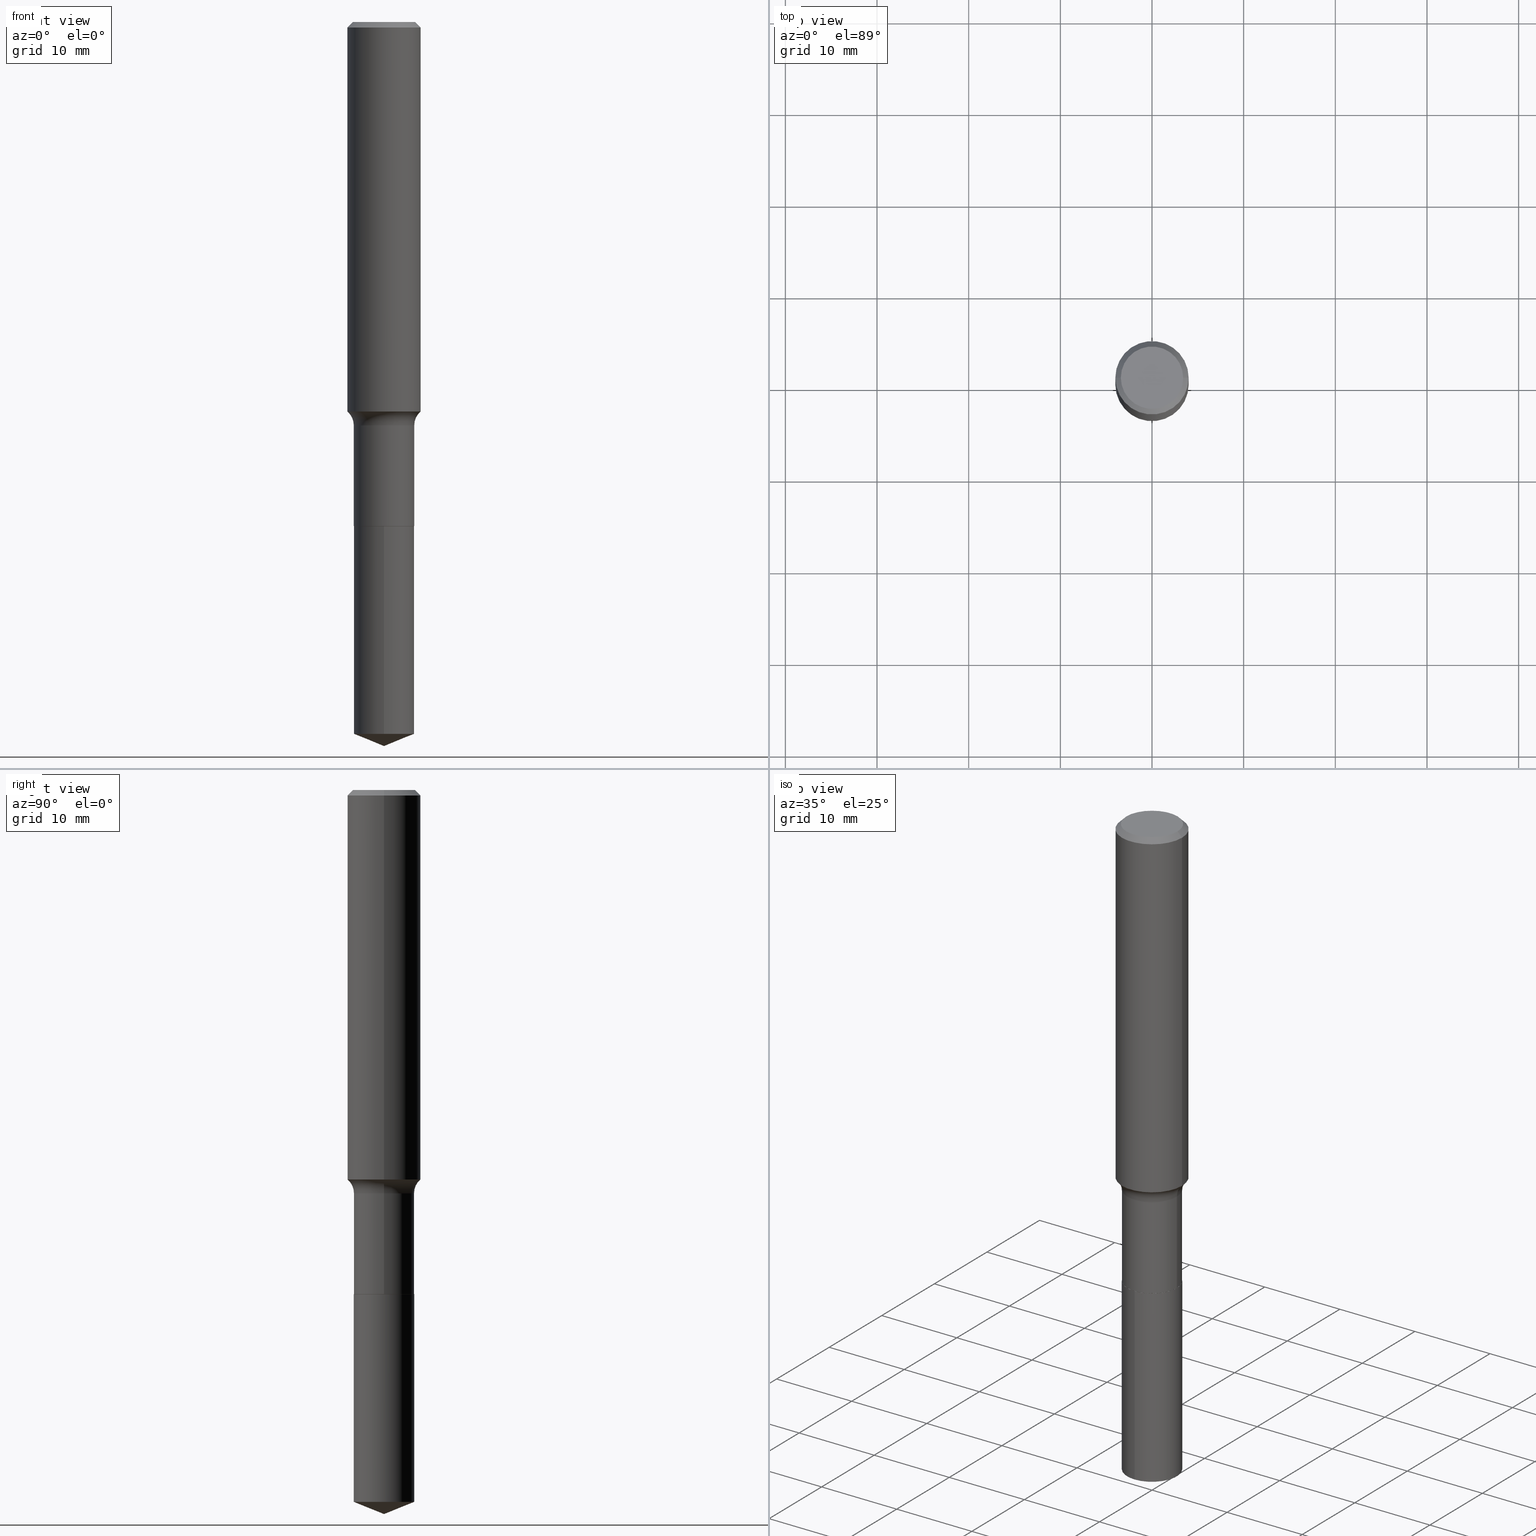
[diagram: canonical four-view strip — front | top / right | iso, engineering-drawing reading convention]
A machine part, canonical four-view strip (front | top / right | iso — engineering-drawing reading convention). The complete STEP part file that produces these views, byte-faithful:
ISO-10303-21;
HEADER;
FILE_DESCRIPTION (( 'STEP AP203' ),
    '1' );
FILE_NAME ('69156.STEP',
    '2024-04-19T17:17:49',
    ( '' ),
    ( '' ),
    'SwSTEP 2.0',
    'SolidWorks 2023',
    '' );
FILE_SCHEMA (( 'CONFIG_CONTROL_DESIGN' ));
ENDSEC;

DATA;
#1 = CALENDAR_DATE ( 2024, 19, 4 ) ;
#2 = LINE ( 'NONE', #305, #219 ) ;
#3 = ORIENTED_EDGE ( 'NONE', *, *, #112, .F. ) ;
#4 = COORDINATED_UNIVERSAL_TIME_OFFSET ( 5, 0, .BEHIND. ) ;
#5 = CARTESIAN_POINT ( 'NONE',  ( 9.229950137524449958E-16, 0.1298999999999893573, -3.057716993264014249 ) ) ;
#6 = APPROVAL_DATE_TIME ( #421, #202 ) ;
#7 = DIRECTION ( 'NONE',  ( -2.445364985460457851E-29, 3.491630016029994283E-15, 1.000000000000000000 ) ) ;
#8 = EDGE_LOOP ( 'NONE', ( #238, #171, #401 ) ) ;
#9 = AXIS2_PLACEMENT_3D ( 'NONE', #98, #477, #134 ) ;
#10 = CARTESIAN_POINT ( 'NONE',  ( -0.1575000000000000011, -1.842884376224946844E-15, -0.02362500000000015282 ) ) ;
#11 = EDGE_LOOP ( 'NONE', ( #81, #18, #418, #464 ) ) ;
#12 = EDGE_CURVE ( 'NONE', #205, #119, #395, .T. ) ;
#13 = PRODUCT_DEFINITION ( 'UNKNOWN', '', #368, #439 ) ;
#14 = DIRECTION ( 'NONE',  ( -2.445468806185136597E-29, 3.491481338843145583E-15, 1.000000000000000000 ) ) ;
#15 = LINE ( 'NONE', #162, #24 ) ;
#16 = EDGE_LOOP ( 'NONE', ( #375, #33, #278, #380 ) ) ;
#17 = CYLINDRICAL_SURFACE ( 'NONE', #366, 0.1575000000000000844 ) ;
#18 = ORIENTED_EDGE ( 'NONE', *, *, #281, .F. ) ;
#19 = LINE ( 'NONE', #369, #311 ) ;
#20 = TOROIDAL_SURFACE ( 'NONE', #476, 0.2078999999999999182, 0.07800000000000001377 ) ;
#21 = DIRECTION ( 'NONE',  ( -2.445468806185136597E-29, 3.491481338843145583E-15, 1.000000000000000000 ) ) ;
#22 = DIRECTION ( 'NONE',  ( -2.445468806185136597E-29, 3.491481338843145583E-15, 1.000000000000000000 ) ) ;
#23 = DIRECTION ( 'NONE',  ( 7.105427357601001859E-15, 1.000000000000000000, -3.491481338843145583E-15 ) ) ;
#24 = VECTOR ( 'NONE', #468, 39.37007874015748143 ) ;
#25 = DIRECTION ( 'NONE',  ( 1.000000000000000000, 0.000000000000000000, 0.000000000000000000 ) ) ;
#26 = ORIENTED_EDGE ( 'NONE', *, *, #132, .T. ) ;
#27 = DIRECTION ( 'NONE',  ( -2.445364985460457851E-29, 3.491630016029994283E-15, 1.000000000000000000 ) ) ;
#28 = DIRECTION ( 'NONE',  ( -2.445468806185136597E-29, 3.491481338843145583E-15, 1.000000000000000000 ) ) ;
#29 = ADVANCED_BREP_SHAPE_REPRESENTATION ( '69156', ( #325, #483, #122 ), #352 ) ;
#30 = EDGE_CURVE ( 'NONE', #394, #101, #288, .T. ) ;
#31 = CIRCLE ( 'NONE', #224, 0.07800000000000002764 ) ;
#32 = EDGE_CURVE ( 'NONE', #394, #173, #86, .T. ) ;
#33 = ORIENTED_EDGE ( 'NONE', *, *, #32, .T. ) ;
#34 = DIRECTION ( 'NONE',  ( -2.445364985460457851E-29, 3.491630016029994283E-15, 1.000000000000000000 ) ) ;
#35 = VERTEX_POINT ( 'NONE', #324 ) ;
#36 = CARTESIAN_POINT ( 'NONE',  ( 5.295173606032675561E-29, -7.560104542997063911E-15, -2.165299999999999780 ) ) ;
#37 = CARTESIAN_POINT ( 'NONE',  ( 5.295173606032675561E-29, -7.560104542997063911E-15, -2.165299999999999780 ) ) ;
#38 = CARTESIAN_POINT ( 'NONE',  ( 5.777420054612421980E-31, -8.248624663016985234E-17, -0.02362500000000015282 ) ) ;
#39 = VECTOR ( 'NONE', #58, 39.37007874015748143 ) ;
#40 = AXIS2_PLACEMENT_3D ( 'NONE', #465, #115, #261 ) ;
#41 = DATE_TIME_ROLE ( 'creation_date' ) ;
#42 = CARTESIAN_POINT ( 'NONE',  ( 4.091440103254479694E-29, -5.841492123464042654E-15, -1.673069839576900142 ) ) ;
#43 = APPROVAL_STATUS ( 'not_yet_approved' ) ;
#44 = CARTESIAN_POINT ( 'NONE',  ( 5.295173606032675561E-29, -7.560104542997063911E-15, -2.165299999999999780 ) ) ;
#45 = FACE_OUTER_BOUND ( 'NONE', #156, .T. ) ;
#46 = ADVANCED_FACE ( 'NONE', ( #209 ), #250, .T. ) ;
#47 = EDGE_CURVE ( 'NONE', #282, #104, #165, .T. ) ;
#48 = AXIS2_PLACEMENT_3D ( 'NONE', #42, #460, #463 ) ;
#49 = PRODUCT_DEFINITION_SHAPE ( 'NONE', 'NONE',  #13 ) ;
#50 = AXIS2_PLACEMENT_3D ( 'NONE', #355, #234, #277 ) ;
#51 = CIRCLE ( 'NONE', #462, 0.1298999999999999877 ) ;
#52 = DIRECTION ( 'NONE',  ( 1.000000000000000000, -6.982962677686265922E-15, 0.000000000000000000 ) ) ;
#53 = PLANE ( 'NONE',  #350 ) ;
#54 = FACE_OUTER_BOUND ( 'NONE', #89, .T. ) ;
#55 = CLOSED_SHELL ( 'NONE', ( #46, #383, #313, #407, #341, #370, #80, #61, #291, #359, #334, #174 ) ) ;
#56 = CYLINDRICAL_SURFACE ( 'NONE', #481, 0.1298999999999999599 ) ;
#57 = VECTOR ( 'NONE', #295, 39.37007874015748143 ) ;
#58 = DIRECTION ( 'NONE',  ( -2.445468806185136877E-29, 3.491481338843145188E-15, 1.000000000000000000 ) ) ;
#59 = DIRECTION ( 'NONE',  ( -2.445364985460457851E-29, 3.491630016029994283E-15, 1.000000000000000000 ) ) ;
#60 = FACE_OUTER_BOUND ( 'NONE', #8, .T. ) ;
#61 = ADVANCED_FACE ( 'NONE', ( #215 ), #17, .T. ) ;
#62 = EDGE_CURVE ( 'NONE', #205, #349, #139, .T. ) ;
#63 = APPLICATION_PROTOCOL_DEFINITION ( 'international standard', 'config_control_design', 1994, #194 ) ;
#64 = VECTOR ( 'NONE', #164, 39.37007874015748143 ) ;
#65 = CARTESIAN_POINT ( 'NONE',  ( 5.293950871629583880E-29, -7.558358802327641618E-15, -2.164800000000000058 ) ) ;
#66 = DIRECTION ( 'NONE',  ( 6.982962677686265922E-15, 1.000000000000000000, -3.491630016029994283E-15 ) ) ;
#67 =( NAMED_UNIT ( * ) PLANE_ANGLE_UNIT ( ) SI_UNIT ( $, .RADIAN. ) );
#68 = ADVANCED_FACE ( 'NONE', ( #199 ), #153, .T. ) ;
#69 = DATE_TIME_ROLE ( 'classification_date' ) ;
#70 = LOCAL_TIME ( 13, 17, 49.00000000000000000, #4 ) ;
#71 = COORDINATED_UNIVERSAL_TIME_OFFSET ( 5, 0, .BEHIND. ) ;
#72 = CARTESIAN_POINT ( 'NONE',  ( -0.1293999999999999873, -6.640662242923493769E-15, -2.165299999999999780 ) ) ;
#73 = DIRECTION ( 'NONE',  ( -2.445364985460457851E-29, 3.491630016029994283E-15, 1.000000000000000000 ) ) ;
#74 = APPROVAL_ROLE ( '' ) ;
#75 = VECTOR ( 'NONE', #172, 39.37007874015748854 ) ;
#76 = PERSON_AND_ORGANIZATION ( #416, #167 ) ;
#77 = DIRECTION ( 'NONE',  ( -2.445468806185136597E-29, 3.491481338843145583E-15, 1.000000000000000000 ) ) ;
#78 = ORIENTED_EDGE ( 'NONE', *, *, #190, .T. ) ;
#79 = DIRECTION ( 'NONE',  ( -2.445468806185136597E-29, 3.491481338843145583E-15, 1.000000000000000000 ) ) ;
#80 = ADVANCED_FACE ( 'NONE', ( #201 ), #480, .F. ) ;
#81 = ORIENTED_EDGE ( 'NONE', *, *, #392, .F. ) ;
#82 = EDGE_CURVE ( 'NONE', #389, #258, #223, .T. ) ;
#83 = CARTESIAN_POINT ( 'NONE',  ( 4.237019253596368185E-29, -6.049340567679635558E-15, -1.732600000000000362 ) ) ;
#84 = UNCERTAINTY_MEASURE_WITH_UNIT (LENGTH_MEASURE( 1.000000000000000082E-05 ), #257, 'distance_accuracy_value', 'NONE');
#85 = PRODUCT_RELATED_PRODUCT_CATEGORY ( 'detail', '', ( #116 ) ) ;
#86 = CIRCLE ( 'NONE', #99, 0.1298999999999999877 ) ;
#87 = AXIS2_PLACEMENT_3D ( 'NONE', #345, #143, #301 ) ;
#88 = CARTESIAN_POINT ( 'NONE',  ( -0.1338749999999999940, 9.760872517903331886E-16, 4.101342130337800673E-18 ) ) ;
#89 = EDGE_LOOP ( 'NONE', ( #136, #385 ) ) ;
#90 = CARTESIAN_POINT ( 'NONE',  ( 5.295173606032675561E-29, -7.560104542997063911E-15, -2.165299999999999780 ) ) ;
#91 = DIRECTION ( 'NONE',  ( -2.445468806185136597E-29, 3.491481338843145583E-15, 1.000000000000000000 ) ) ;
#92 = AXIS2_PLACEMENT_3D ( 'NONE', #106, #229, #309 ) ;
#93 = FACE_OUTER_BOUND ( 'NONE', #316, .T. ) ;
#94 = ORIENTED_EDGE ( 'NONE', *, *, #147, .F. ) ;
#95 = ADVANCED_FACE ( 'NONE', ( #274 ), #490, .T. ) ;
#96 = CC_DESIGN_PERSON_AND_ORGANIZATION_ASSIGNMENT ( #447, #105, ( #116 ) ) ;
#97 = VERTEX_POINT ( 'NONE', #231 ) ;
#98 = CARTESIAN_POINT ( 'NONE',  ( 5.295173606032675561E-29, -7.560104542997063911E-15, -2.165299999999999780 ) ) ;
#99 = AXIS2_PLACEMENT_3D ( 'NONE', #65, #21, #170 ) ;
#100 = DIRECTION ( 'NONE',  ( 1.000000000000000000, -6.982962677686265133E-15, 0.000000000000000000 ) ) ;
#101 = VERTEX_POINT ( 'NONE', #348 ) ;
#102 =( LENGTH_UNIT ( ) NAMED_UNIT ( * ) SI_UNIT ( $, .METRE. ) );
#103 = APPROVAL ( #43, 'UNSPECIFIED' ) ;
#104 = VERTEX_POINT ( 'NONE', #113 ) ;
#105 = PERSON_AND_ORGANIZATION_ROLE ( 'design_owner' ) ;
#106 = CARTESIAN_POINT ( 'NONE',  ( 4.237019253596368185E-29, -6.049340567679635558E-15, -1.732600000000000362 ) ) ;
#107 = DIRECTION ( 'NONE',  ( -6.982962677686266711E-15, -1.000000000000000000, 4.206078512185163024E-15 ) ) ;
#108 = CALENDAR_DATE ( 2024, 19, 4 ) ;
#109 = DIRECTION ( 'NONE',  ( -0.7071067811865450192, 2.468850131082230634E-15, -0.7071067811865500152 ) ) ;
#110 = SECURITY_CLASSIFICATION_LEVEL ( 'unclassified' ) ;
#111 = DIRECTION ( 'NONE',  ( -6.982962677686266711E-15, -1.000000000000000000, 4.206078512185163024E-15 ) ) ;
#112 = EDGE_CURVE ( 'NONE', #258, #377, #422, .T. ) ;
#113 = CARTESIAN_POINT ( 'NONE',  ( 0.1293999999999999873, -8.463699913489665713E-15, -2.165299999999999780 ) ) ;
#114 = ORIENTED_EDGE ( 'NONE', *, *, #129, .T. ) ;
#115 = DIRECTION ( 'NONE',  ( 2.445468806185136597E-29, -3.491481338843145583E-15, -1.000000000000000000 ) ) ;
#116 = PRODUCT ( '69156', '69156', '', ( #182 ) ) ;
#117 = DIRECTION ( 'NONE',  ( -2.445364985460457851E-29, 3.491630016029994283E-15, 1.000000000000000000 ) ) ;
#118 = CYLINDRICAL_SURFACE ( 'NONE', #284, 0.1575000000000000844 ) ;
#119 = VERTEX_POINT ( 'NONE', #150 ) ;
#120 = ORIENTED_EDGE ( 'NONE', *, *, #225, .F. ) ;
#121 = AXIS2_PLACEMENT_3D ( 'NONE', #38, #79, #272 ) ;
#122 = AXIS2_PLACEMENT_3D ( 'NONE', #373, #475, #25 ) ;
#123 = CARTESIAN_POINT ( 'NONE',  ( 0.000000000000000000, 0.000000000000000000, 0.000000000000000000 ) ) ;
#124 = CC_DESIGN_DATE_AND_TIME_ASSIGNMENT ( #308, #69, ( #253 ) ) ;
#125 = DIRECTION ( 'NONE',  ( 1.000000000000000000, -6.982962677686266711E-15, 4.876170806578254279E-29 ) ) ;
#126 = ORIENTED_EDGE ( 'NONE', *, *, #486, .F. ) ;
#127 = CARTESIAN_POINT ( 'NONE',  ( 0.000000000000000000, 0.000000000000000000, 0.000000000000000000 ) ) ;
#128 = ORIENTED_EDGE ( 'NONE', *, *, #392, .T. ) ;
#129 = EDGE_CURVE ( 'NONE', #377, #302, #206, .T. ) ;
#130 = CARTESIAN_POINT ( 'NONE',  ( 0.1338749999999999940, -1.040731925365424925E-15, 4.101342130351390035E-18 ) ) ;
#131 = CIRCLE ( 'NONE', #492, 0.1575000000000001954 ) ;
#132 = EDGE_CURVE ( 'NONE', #282, #394, #488, .T. ) ;
#133 = CC_DESIGN_APPROVAL ( #202, ( #368 ) ) ;
#134 = DIRECTION ( 'NONE',  ( -6.982962677686266711E-15, -1.000000000000000000, 4.206078512185163024E-15 ) ) ;
#135 = CARTESIAN_POINT ( 'NONE',  ( 5.295173606032675561E-29, -7.560104542997063911E-15, -2.165299999999999780 ) ) ;
#136 = ORIENTED_EDGE ( 'NONE', *, *, #296, .T. ) ;
#137 = ORIENTED_EDGE ( 'NONE', *, *, #281, .T. ) ;
#138 = CARTESIAN_POINT ( 'NONE',  ( -8.866841304520801907E-28, 1.266064029174544030E-13, 36.25987874015748247 ) ) ;
#139 = CIRCLE ( 'NONE', #232, 0.1298999999999999877 ) ;
#140 = CIRCLE ( 'NONE', #331, 0.1298999999999999322 ) ;
#141 = FACE_OUTER_BOUND ( 'NONE', #263, .T. ) ;
#142 = APPROVAL_ROLE ( '' ) ;
#143 = DIRECTION ( 'NONE',  ( -2.445468806185136597E-29, 3.491481338843145583E-15, 1.000000000000000000 ) ) ;
#144 = COORDINATED_UNIVERSAL_TIME_OFFSET ( 5, 0, .BEHIND. ) ;
#145 = EDGE_CURVE ( 'NONE', #101, #226, #148, .T. ) ;
#146 = DIRECTION ( 'NONE',  ( -2.445364985460457851E-29, 3.491630016029994283E-15, 1.000000000000000000 ) ) ;
#147 = EDGE_CURVE ( 'NONE', #349, #205, #269, .T. ) ;
#148 = CIRCLE ( 'NONE', #50, 0.1298999999999999322 ) ;
#149 = SHAPE_DEFINITION_REPRESENTATION ( #49, #29 ) ;
#150 = CARTESIAN_POINT ( 'NONE',  ( 9.229950137524447986E-16, 0.1298999999999924382, -2.165300000000000669 ) ) ;
#151 = ORIENTED_EDGE ( 'NONE', *, *, #486, .T. ) ;
#152 = CALENDAR_DATE ( 2024, 19, 4 ) ;
#153 = CYLINDRICAL_SURFACE ( 'NONE', #310, 0.1298999999999999877 ) ;
#154 = PERSON_AND_ORGANIZATION_ROLE ( 'creator' ) ;
#155 = DIRECTION ( 'NONE',  ( -6.982962677686266711E-15, -1.000000000000000000, 4.206078512185163024E-15 ) ) ;
#156 = EDGE_LOOP ( 'NONE', ( #137, #163, #293, #3 ) ) ;
#157 = DIRECTION ( 'NONE',  ( -2.445468806185136597E-29, 3.491481338843145583E-15, 1.000000000000000000 ) ) ;
#158 = CIRCLE ( 'NONE', #9, 0.1298999999999999877 ) ;
#159 = DIRECTION ( 'NONE',  ( -2.445468806185136597E-29, 3.491481338843145583E-15, 1.000000000000000000 ) ) ;
#160 = ORIENTED_EDGE ( 'NONE', *, *, #32, .F. ) ;
#161 = ORIENTED_EDGE ( 'NONE', *, *, #62, .T. ) ;
#162 = CARTESIAN_POINT ( 'NONE',  ( 7.606027726323578018E-29, -1.085902381443112281E-14, -3.110199999999999854 ) ) ;
#163 = ORIENTED_EDGE ( 'NONE', *, *, #332, .T. ) ;
#164 = DIRECTION ( 'NONE',  ( -2.445468806185136877E-29, 3.491481338843145188E-15, 1.000000000000000000 ) ) ;
#165 = CIRCLE ( 'NONE', #454, 0.1293999999999999873 ) ;
#166 = AXIS2_PLACEMENT_3D ( 'NONE', #292, #23, #177 ) ;
#167 = ORGANIZATION ( 'UNSPECIFIED', 'UNSPECIFIED', '' ) ;
#168 = CARTESIAN_POINT ( 'NONE',  ( 5.295173606032675561E-29, -7.560104542997063911E-15, -2.165299999999999780 ) ) ;
#169 = EDGE_LOOP ( 'NONE', ( #241, #161, #482, #195 ) ) ;
#170 = DIRECTION ( 'NONE',  ( 1.000000000000000000, -6.982962677686268288E-15, 0.000000000000000000 ) ) ;
#171 = ORIENTED_EDGE ( 'NONE', *, *, #314, .T. ) ;
#172 = DIRECTION ( 'NONE',  ( -6.474490251793187306E-15, -0.9271838545667875353, 0.3746065934159114597 ) ) ;
#173 = VERTEX_POINT ( 'NONE', #228 ) ;
#174 = ADVANCED_FACE ( 'NONE', ( #432 ), #372, .T. ) ;
#175 = EDGE_CURVE ( 'NONE', #119, #97, #51, .T. ) ;
#176 = APPLICATION_CONTEXT ( 'configuration controlled 3d designs of mechanical parts and assemblies' ) ;
#177 = DIRECTION ( 'NONE',  ( -1.000000000000000000, 7.105427357601001859E-15, 0.000000000000000000 ) ) ;
#178 = ORIENTED_EDGE ( 'NONE', *, *, #473, .F. ) ;
#179 = DIMENSIONAL_EXPONENTS ( 1.000000000000000000, 0.000000000000000000, 0.000000000000000000, 0.000000000000000000, 0.000000000000000000, 0.000000000000000000, 0.000000000000000000 ) ;
#180 = AXIS2_PLACEMENT_3D ( 'NONE', #138, #27, #329 ) ;
#181 = CARTESIAN_POINT ( 'NONE',  ( -9.070868518313931384E-16, -0.1299000000000075650, -2.165299999999999336 ) ) ;
#182 = MECHANICAL_CONTEXT ( 'NONE', #194, 'mechanical' ) ;
#183 = ORIENTED_EDGE ( 'NONE', *, *, #175, .T. ) ;
#184 = LINE ( 'NONE', #218, #275 ) ;
#185 = ORIENTED_EDGE ( 'NONE', *, *, #112, .T. ) ;
#186 = CLOSED_SHELL ( 'NONE', ( #95, #191, #408, #68, #445 ) ) ;
#187 = AXIS2_PLACEMENT_3D ( 'NONE', #357, #7, #189 ) ;
#188 = ORIENTED_EDGE ( 'NONE', *, *, #264, .F. ) ;
#189 = DIRECTION ( 'NONE',  ( -6.982962677686266711E-15, -1.000000000000000000, 4.206078512185163024E-15 ) ) ;
#190 = EDGE_CURVE ( 'NONE', #302, #377, #240, .T. ) ;
#191 = ADVANCED_FACE ( 'NONE', ( #196 ), #367, .T. ) ;
#192 = DATE_AND_TIME ( #230, #322 ) ;
#193 = CARTESIAN_POINT ( 'NONE',  ( 5.295173606032675561E-29, -7.560104542997063911E-15, -2.165299999999999780 ) ) ;
#194 = APPLICATION_CONTEXT ( 'configuration controlled 3d designs of mechanical parts and assemblies' ) ;
#195 = ORIENTED_EDGE ( 'NONE', *, *, #175, .F. ) ;
#196 = FACE_OUTER_BOUND ( 'NONE', #442, .T. ) ;
#197 = LOCAL_TIME ( 13, 17, 49.00000000000000000, #71 ) ;
#198 = PERSON_AND_ORGANIZATION ( #416, #167 ) ;
#199 = FACE_OUTER_BOUND ( 'NONE', #169, .T. ) ;
#200 = APPROVAL_STATUS ( 'not_yet_approved' ) ;
#201 = FACE_OUTER_BOUND ( 'NONE', #11, .T. ) ;
#202 = APPROVAL ( #200, 'UNSPECIFIED' ) ;
#203 = CARTESIAN_POINT ( 'NONE',  ( 0.000000000000000000, 0.000000000000000000, 0.000000000000000000 ) ) ;
#204 = DIRECTION ( 'NONE',  ( 1.000000000000000000, -6.982962677686265922E-15, 4.876176775795935793E-29 ) ) ;
#205 = VERTEX_POINT ( 'NONE', #5 ) ;
#206 = CIRCLE ( 'NONE', #267, 0.1575000000000000011 ) ;
#207 = AXIS2_PLACEMENT_3D ( 'NONE', #365, #249, #393 ) ;
#208 = CARTESIAN_POINT ( 'NONE',  ( 5.777420054612421980E-31, -8.248624663016985234E-17, -0.02362500000000015282 ) ) ;
#209 = FACE_OUTER_BOUND ( 'NONE', #364, .T. ) ;
#210 = CYLINDRICAL_SURFACE ( 'NONE', #212, 0.1298999999999999599 ) ;
#211 = LINE ( 'NONE', #440, #75 ) ;
#212 = AXIS2_PLACEMENT_3D ( 'NONE', #123, #91, #285 ) ;
#213 = CC_DESIGN_SECURITY_CLASSIFICATION ( #253, ( #368 ) ) ;
#214 = CARTESIAN_POINT ( 'NONE',  ( 0.1575000000000002232, -6.941308745199630134E-15, -1.673069839576900142 ) ) ;
#215 = FACE_OUTER_BOUND ( 'NONE', #415, .T. ) ;
#216 = EDGE_CURVE ( 'NONE', #434, #327, #252, .T. ) ;
#217 = CARTESIAN_POINT ( 'NONE',  ( 5.295173606032675561E-29, -7.560104542997063911E-15, -2.165299999999999780 ) ) ;
#218 = CARTESIAN_POINT ( 'NONE',  ( 0.1298999999999999599, -9.070868518314457948E-16, 6.334153631758918028E-30 ) ) ;
#219 = VECTOR ( 'NONE', #109, 39.37007874015748143 ) ;
#220 = FACE_OUTER_BOUND ( 'NONE', #262, .T. ) ;
#221 = PLANE ( 'NONE',  #233 ) ;
#222 = CC_DESIGN_PERSON_AND_ORGANIZATION_ASSIGNMENT ( #489, #347, ( #13 ) ) ;
#223 = CIRCLE ( 'NONE', #48, 0.1575000000000001954 ) ;
#224 = AXIS2_PLACEMENT_3D ( 'NONE', #388, #397, #469 ) ;
#225 = EDGE_CURVE ( 'NONE', #327, #302, #2, .T. ) ;
#226 = VERTEX_POINT ( 'NONE', #427 ) ;
#227 = APPROVAL_ROLE ( '' ) ;
#228 = CARTESIAN_POINT ( 'NONE',  ( 0.1298999999999999877, -8.465445654159088005E-15, -2.164800000000000058 ) ) ;
#229 = DIRECTION ( 'NONE',  ( -2.445468806185136597E-29, 3.491481338843145583E-15, 1.000000000000000000 ) ) ;
#230 = CALENDAR_DATE ( 2024, 19, 4 ) ;
#231 = CARTESIAN_POINT ( 'NONE',  ( -9.070868518313931384E-16, -0.1299000000000075650, -2.165299999999999336 ) ) ;
#232 = AXIS2_PLACEMENT_3D ( 'NONE', #453, #73, #155 ) ;
#233 = AXIS2_PLACEMENT_3D ( 'NONE', #217, #371, #66 ) ;
#234 = DIRECTION ( 'NONE',  ( -2.445468806185136597E-29, 3.491481338843145583E-15, 1.000000000000000000 ) ) ;
#235 = ORIENTED_EDGE ( 'NONE', *, *, #30, .T. ) ;
#236 = CARTESIAN_POINT ( 'NONE',  ( -8.866841304520801907E-28, 1.266064029174544030E-13, 36.25987874015748247 ) ) ;
#237 = ORIENTED_EDGE ( 'NONE', *, *, #132, .F. ) ;
#238 = ORIENTED_EDGE ( 'NONE', *, *, #265, .F. ) ;
#239 = DIRECTION ( 'NONE',  ( -2.445468806185136597E-29, 3.491481338843145583E-15, 1.000000000000000000 ) ) ;
#240 = CIRCLE ( 'NONE', #121, 0.1575000000000000011 ) ;
#241 = ORIENTED_EDGE ( 'NONE', *, *, #12, .F. ) ;
#242 = CARTESIAN_POINT ( 'NONE',  ( 4.091440103254479694E-29, -5.841492123464042654E-15, -1.673069839576900142 ) ) ;
#243 = ORIENTED_EDGE ( 'NONE', *, *, #216, .F. ) ;
#244 = DIRECTION ( 'NONE',  ( 1.000000000000000000, -6.982962677686265133E-15, 0.000000000000000000 ) ) ;
#245 = ORIENTED_EDGE ( 'NONE', *, *, #47, .T. ) ;
#246 = DIRECTION ( 'NONE',  ( 1.000000000000000000, -6.982962677686267499E-15, 4.876176775795936353E-29 ) ) ;
#247 = ORIENTED_EDGE ( 'NONE', *, *, #296, .F. ) ;
#248 = EDGE_CURVE ( 'NONE', #258, #226, #31, .T. ) ;
#249 = DIRECTION ( 'NONE',  ( 2.438088387897960049E-29, -3.491481338843145188E-15, -1.000000000000000000 ) ) ;
#250 = CONICAL_SURFACE ( 'NONE', #361, 0.1293999999999999873, 0.7853981633975507526 ) ;
#251 = ORIENTED_EDGE ( 'NONE', *, *, #443, .T. ) ;
#252 = CIRCLE ( 'NONE', #87, 0.1338749999999999940 ) ;
#253 = SECURITY_CLASSIFICATION ( '', '', #110 ) ;
#254 = DIRECTION ( 'NONE',  ( 1.000000000000000000, -6.982962677686268288E-15, 0.000000000000000000 ) ) ;
#255 = CC_DESIGN_PERSON_AND_ORGANIZATION_ASSIGNMENT ( #306, #154, ( #368 ) ) ;
#256 = ORIENTED_EDGE ( 'NONE', *, *, #358, .T. ) ;
#257 =( CONVERSION_BASED_UNIT ( 'INCH', #333 ) LENGTH_UNIT ( ) NAMED_UNIT ( #179 ) );
#258 = VERTEX_POINT ( 'NONE', #214 ) ;
#259 = VECTOR ( 'NONE', #117, 39.37007874015748143 ) ;
#260 = AXIS2_PLACEMENT_3D ( 'NONE', #208, #441, #471 ) ;
#261 = DIRECTION ( 'NONE',  ( -1.000000000000000000, 6.982962677686265922E-15, 0.000000000000000000 ) ) ;
#262 = EDGE_LOOP ( 'NONE', ( #251, #183 ) ) ;
#263 = EDGE_LOOP ( 'NONE', ( #409, #128, #431, #402 ) ) ;
#264 = EDGE_CURVE ( 'NONE', #226, #101, #140, .T. ) ;
#265 = EDGE_CURVE ( 'NONE', #35, #205, #15, .T. ) ;
#266 = APPROVAL_STATUS ( 'not_yet_approved' ) ;
#267 = AXIS2_PLACEMENT_3D ( 'NONE', #430, #77, #457 ) ;
#268 = DIRECTION ( 'NONE',  ( -2.445468806185136877E-29, 3.491481338843145188E-15, 1.000000000000000000 ) ) ;
#269 = CIRCLE ( 'NONE', #187, 0.1298999999999999877 ) ;
#270 = DIRECTION ( 'NONE',  ( -2.445364985460457851E-29, 3.491630016029994283E-15, 1.000000000000000000 ) ) ;
#271 = APPROVAL_DATE_TIME ( #417, #103 ) ;
#272 = DIRECTION ( 'NONE',  ( 1.000000000000000000, -6.982962677686265922E-15, 0.000000000000000000 ) ) ;
#273 = PERSON_AND_ORGANIZATION ( #416, #167 ) ;
#274 = FACE_OUTER_BOUND ( 'NONE', #472, .T. ) ;
#275 = VECTOR ( 'NONE', #340, 39.37007874015748143 ) ;
#276 = ORIENTED_EDGE ( 'NONE', *, *, #190, .F. ) ;
#277 = DIRECTION ( 'NONE',  ( 1.000000000000000000, -6.982962677686263555E-15, 0.000000000000000000 ) ) ;
#278 = ORIENTED_EDGE ( 'NONE', *, *, #485, .T. ) ;
#279 = CARTESIAN_POINT ( 'NONE',  ( 0.1575000000000000011, -1.182302868365756679E-15, -0.02362500000000015282 ) ) ;
#280 = EDGE_CURVE ( 'NONE', #434, #377, #19, .T. ) ;
#281 = EDGE_CURVE ( 'NONE', #258, #389, #131, .T. ) ;
#282 = VERTEX_POINT ( 'NONE', #286 ) ;
#283 = CARTESIAN_POINT ( 'NONE',  ( 0.000000000000000000, 0.000000000000000000, 0.000000000000000000 ) ) ;
#284 = AXIS2_PLACEMENT_3D ( 'NONE', #283, #437, #315 ) ;
#285 = DIRECTION ( 'NONE',  ( 1.000000000000000000, -6.982962677686266711E-15, 4.876176775795935232E-29 ) ) ;
#286 = CARTESIAN_POINT ( 'NONE',  ( -0.1293999999999999873, -6.638013015749382568E-15, -2.165299999999999780 ) ) ;
#287 = DIRECTION ( 'NONE',  ( -2.445468806185136597E-29, 3.491481338843145583E-15, 1.000000000000000000 ) ) ;
#288 = LINE ( 'NONE', #336, #39 ) ;
#289 = VECTOR ( 'NONE', #268, 39.37007874015748143 ) ;
#290 = CIRCLE ( 'NONE', #294, 0.1298999999999999877 ) ;
#291 = ADVANCED_FACE ( 'NONE', ( #318 ), #398, .T. ) ;
#292 = CARTESIAN_POINT ( 'NONE',  ( -0.2078999999999999182, -4.572122220034387458E-15, -1.732600000000000362 ) ) ;
#293 = ORIENTED_EDGE ( 'NONE', *, *, #129, .F. ) ;
#294 = AXIS2_PLACEMENT_3D ( 'NONE', #337, #484, #254 ) ;
#295 = DIRECTION ( 'NONE',  ( 0.7071067811866199593, -2.468850131083015945E-15, 0.7071067811864750752 ) ) ;
#296 = EDGE_CURVE ( 'NONE', #327, #434, #429, .T. ) ;
#297 = EDGE_LOOP ( 'NONE', ( #346, #235, #188, #461 ) ) ;
#298 = DIRECTION ( 'NONE',  ( 1.000000000000000000, -6.982962677686267499E-15, 4.883557194083113462E-29 ) ) ;
#299 = ORIENTED_EDGE ( 'NONE', *, *, #314, .F. ) ;
#300 = PERSON_AND_ORGANIZATION_ROLE ( 'classification_officer' ) ;
#301 = DIRECTION ( 'NONE',  ( 1.000000000000000000, -6.982962677686266711E-15, 4.876170806578254279E-29 ) ) ;
#302 = VERTEX_POINT ( 'NONE', #10 ) ;
#303 = DIRECTION ( 'NONE',  ( -0.7071067811866199593, 7.493145998870616062E-15, 0.7071067811864750752 ) ) ;
#304 = CC_DESIGN_APPROVAL ( #424, ( #13 ) ) ;
#305 = CARTESIAN_POINT ( 'NONE',  ( -0.1575000000000000011, 1.017330375105417098E-15, -0.02362500000000015282 ) ) ;
#306 = PERSON_AND_ORGANIZATION ( #416, #167 ) ;
#307 = DIRECTION ( 'NONE',  ( -6.982962677686266711E-15, -1.000000000000000000, 4.206078512185163024E-15 ) ) ;
#308 = DATE_AND_TIME ( #108, #197 ) ;
#309 = DIRECTION ( 'NONE',  ( 1.000000000000000000, -6.982962677686267499E-15, 4.883557194083113462E-29 ) ) ;
#310 = AXIS2_PLACEMENT_3D ( 'NONE', #44, #270, #307 ) ;
#311 = VECTOR ( 'NONE', #360, 39.37007874015748143 ) ;
#312 = APPROVAL_PERSON_ORGANIZATION ( #354, #202, #142 ) ;
#313 = ADVANCED_FACE ( 'NONE', ( #45 ), #118, .T. ) ;
#314 = EDGE_CURVE ( 'NONE', #35, #349, #211, .T. ) ;
#315 = DIRECTION ( 'NONE',  ( 1.000000000000000000, -6.982962677686267499E-15, 4.876176775795936353E-29 ) ) ;
#316 = EDGE_LOOP ( 'NONE', ( #243, #404, #114, #120 ) ) ;
#317 = EDGE_LOOP ( 'NONE', ( #491, #344 ) ) ;
#318 = FACE_OUTER_BOUND ( 'NONE', #342, .T. ) ;
#319 = CC_DESIGN_DATE_AND_TIME_ASSIGNMENT ( #390, #41, ( #13 ) ) ;
#320 = DIRECTION ( 'NONE',  ( -2.438088387897960049E-29, 3.491481338843145188E-15, 1.000000000000000000 ) ) ;
#321 = CIRCLE ( 'NONE', #166, 0.07800000000000002764 ) ;
#322 = LOCAL_TIME ( 13, 17, 49.00000000000000000, #487 ) ;
#323 = CARTESIAN_POINT ( 'NONE',  ( -9.070868518313712475E-16, -0.1299000000000107014, -3.057716993264013361 ) ) ;
#324 = CARTESIAN_POINT ( 'NONE',  ( 7.605574177779116533E-29, -1.085966767585648801E-14, -3.110199999999999854 ) ) ;
#325 = MANIFOLD_SOLID_BREP ( 'Body-Move/Copy2[1]', #186 ) ;
#326 = FACE_OUTER_BOUND ( 'NONE', #297, .T. ) ;
#327 = VERTEX_POINT ( 'NONE', #88 ) ;
#328 = ORIENTED_EDGE ( 'NONE', *, *, #147, .T. ) ;
#329 = DIRECTION ( 'NONE',  ( -6.982962677686265133E-15, -1.000000000000000000, 3.498761904101795214E-15 ) ) ;
#330 = VECTOR ( 'NONE', #303, 39.37007874015748143 ) ;
#331 = AXIS2_PLACEMENT_3D ( 'NONE', #83, #14, #363 ) ;
#332 = EDGE_CURVE ( 'NONE', #389, #302, #403, .T. ) ;
#333 = LENGTH_MEASURE_WITH_UNIT ( LENGTH_MEASURE( 0.02539999999999999897 ), #102 );
#334 = ADVANCED_FACE ( 'NONE', ( #400 ), #53, .F. ) ;
#335 = DIRECTION ( 'NONE',  ( -2.445468806185136597E-29, 3.491481338843145583E-15, 1.000000000000000000 ) ) ;
#336 = CARTESIAN_POINT ( 'NONE',  ( -0.1298999999999999599, 9.229950137523698568E-16, -6.389696682241120408E-30 ) ) ;
#337 = CARTESIAN_POINT ( 'NONE',  ( 5.293950871629583880E-29, -7.558358802327641618E-15, -2.164800000000000058 ) ) ;
#338 = DIRECTION ( 'NONE',  ( 1.000000000000000000, -6.982962677686265133E-15, 0.000000000000000000 ) ) ;
#339 = ORIENTED_EDGE ( 'NONE', *, *, #332, .F. ) ;
#340 = DIRECTION ( 'NONE',  ( -2.445468806185136877E-29, 3.491481338843145188E-15, 1.000000000000000000 ) ) ;
#341 = ADVANCED_FACE ( 'NONE', ( #326 ), #210, .T. ) ;
#342 = EDGE_LOOP ( 'NONE', ( #448, #247, #433, #78 ) ) ;
#343 = AXIS2_PLACEMENT_3D ( 'NONE', #36, #351, #384 ) ;
#344 = ORIENTED_EDGE ( 'NONE', *, *, #47, .F. ) ;
#345 = CARTESIAN_POINT ( 'NONE',  ( -1.002970424325032604E-46, 1.431975951230895391E-32, 4.101342130344482109E-18 ) ) ;
#346 = ORIENTED_EDGE ( 'NONE', *, *, #473, .T. ) ;
#347 = PERSON_AND_ORGANIZATION_ROLE ( 'creator' ) ;
#348 = CARTESIAN_POINT ( 'NONE',  ( -0.1298999999999999322, -5.880854671251268337E-15, -1.732600000000000362 ) ) ;
#349 = VERTEX_POINT ( 'NONE', #323 ) ;
#350 = AXIS2_PLACEMENT_3D ( 'NONE', #168, #320, #204 ) ;
#351 = DIRECTION ( 'NONE',  ( -2.445468806185136597E-29, 3.491481338843145583E-15, 1.000000000000000000 ) ) ;
#352 =( GEOMETRIC_REPRESENTATION_CONTEXT ( 3 ) GLOBAL_UNCERTAINTY_ASSIGNED_CONTEXT ( ( #84 ) ) GLOBAL_UNIT_ASSIGNED_CONTEXT ( ( #257, #67, #376 ) ) REPRESENTATION_CONTEXT ( 'NONE', 'WORKASPACE' ) );
#353 = ORIENTED_EDGE ( 'NONE', *, *, #423, .F. ) ;
#354 = PERSON_AND_ORGANIZATION ( #416, #167 ) ;
#355 = CARTESIAN_POINT ( 'NONE',  ( 4.237019253596368185E-29, -6.049340567679635558E-15, -1.732600000000000362 ) ) ;
#356 = COORDINATED_UNIVERSAL_TIME_OFFSET ( 5, 0, .BEHIND. ) ;
#357 = CARTESIAN_POINT ( 'NONE',  ( 7.477458873790397149E-29, -1.067609450349293200E-14, -3.057716993264013805 ) ) ;
#358 = EDGE_CURVE ( 'NONE', #104, #282, #446, .T. ) ;
#359 = ADVANCED_FACE ( 'NONE', ( #54 ), #474, .F. ) ;
#360 = DIRECTION ( 'NONE',  ( 0.7071067811865450192, -7.319954787623246579E-15, -0.7071067811865500152 ) ) ;
#361 = AXIS2_PLACEMENT_3D ( 'NONE', #37, #335, #100 ) ;
#362 = CARTESIAN_POINT ( 'NONE',  ( -1.002970424325032604E-46, 1.431975951230895391E-32, 4.101342130344482109E-18 ) ) ;
#363 = DIRECTION ( 'NONE',  ( 1.000000000000000000, -6.982962677686263555E-15, 0.000000000000000000 ) ) ;
#364 = EDGE_LOOP ( 'NONE', ( #256, #26, #178, #126 ) ) ;
#365 = CARTESIAN_POINT ( 'NONE',  ( -5.014852121625163022E-47, 7.159879756154476955E-33, 2.050671065172241055E-18 ) ) ;
#366 = AXIS2_PLACEMENT_3D ( 'NONE', #203, #157, #246 ) ;
#367 = CONICAL_SURFACE ( 'NONE', #438, 97.44436430772933022, 1.186823891356148186 ) ;
#368 = PRODUCT_DEFINITION_FORMATION_WITH_SPECIFIED_SOURCE ( 'ANY', '', #116, .NOT_KNOWN. ) ;
#369 = CARTESIAN_POINT ( 'NONE',  ( 0.1575000000000000011, -1.163014681279185964E-15, -0.02362500000000015282 ) ) ;
#370 = ADVANCED_FACE ( 'NONE', ( #405 ), #56, .T. ) ;
#371 = DIRECTION ( 'NONE',  ( 2.445364985460457571E-29, -3.491630016029994283E-15, -1.000000000000000000 ) ) ;
#372 = CONICAL_SURFACE ( 'NONE', #343, 0.1293999999999999873, 0.7853981633975507526 ) ;
#373 = CARTESIAN_POINT ( 'NONE',  ( 0.000000000000000000, 0.000000000000000000, 0.000000000000000000 ) ) ;
#374 = ORIENTED_EDGE ( 'NONE', *, *, #12, .T. ) ;
#375 = ORIENTED_EDGE ( 'NONE', *, *, #30, .F. ) ;
#376 =( NAMED_UNIT ( * ) SI_UNIT ( $, .STERADIAN. ) SOLID_ANGLE_UNIT ( ) );
#377 = VERTEX_POINT ( 'NONE', #279 ) ;
#378 = CONICAL_SURFACE ( 'NONE', #40, 0.1575000000000000011, 0.7853981633974447263 ) ;
#379 = CC_DESIGN_APPROVAL ( #103, ( #253 ) ) ;
#380 = ORIENTED_EDGE ( 'NONE', *, *, #145, .F. ) ;
#381 = CALENDAR_DATE ( 2024, 19, 4 ) ;
#382 = CARTESIAN_POINT ( 'NONE',  ( 5.295173606032675561E-29, -7.560104542997063911E-15, -2.165299999999999780 ) ) ;
#383 = ADVANCED_FACE ( 'NONE', ( #93 ), #378, .T. ) ;
#384 = DIRECTION ( 'NONE',  ( 1.000000000000000000, -6.982962677686265133E-15, 0.000000000000000000 ) ) ;
#385 = ORIENTED_EDGE ( 'NONE', *, *, #216, .T. ) ;
#386 = APPROVAL_DATE_TIME ( #192, #424 ) ;
#387 = CONICAL_SURFACE ( 'NONE', #180, 97.44436430772933022, 1.186823891356148186 ) ;
#388 = CARTESIAN_POINT ( 'NONE',  ( 0.2078999999999999182, -7.501098508370609991E-15, -1.732600000000000362 ) ) ;
#389 = VERTEX_POINT ( 'NONE', #410 ) ;
#390 = DATE_AND_TIME ( #1, #399 ) ;
#391 = DIRECTION ( 'NONE',  ( -2.445364985460457851E-29, 3.491630016029994283E-15, 1.000000000000000000 ) ) ;
#392 = EDGE_CURVE ( 'NONE', #389, #101, #321, .T. ) ;
#393 = DIRECTION ( 'NONE',  ( -1.000000000000000000, 6.982962677686265922E-15, -4.876176775795935793E-29 ) ) ;
#394 = VERTEX_POINT ( 'NONE', #414 ) ;
#395 = LINE ( 'NONE', #467, #259 ) ;
#396 = CC_DESIGN_PERSON_AND_ORGANIZATION_ASSIGNMENT ( #76, #300, ( #253 ) ) ;
#397 = DIRECTION ( 'NONE',  ( -6.982962677686266711E-15, -1.000000000000000000, 3.491481338843145583E-15 ) ) ;
#398 = CONICAL_SURFACE ( 'NONE', #260, 0.1575000000000000011, 0.7853981633974447263 ) ;
#399 = LOCAL_TIME ( 13, 17, 49.00000000000000000, #356 ) ;
#400 = FACE_OUTER_BOUND ( 'NONE', #317, .T. ) ;
#401 = ORIENTED_EDGE ( 'NONE', *, *, #62, .F. ) ;
#402 = ORIENTED_EDGE ( 'NONE', *, *, #248, .F. ) ;
#403 = LINE ( 'NONE', #435, #64 ) ;
#404 = ORIENTED_EDGE ( 'NONE', *, *, #280, .T. ) ;
#405 = FACE_OUTER_BOUND ( 'NONE', #16, .T. ) ;
#406 = CARTESIAN_POINT ( 'NONE',  ( 4.237019253596368185E-29, -6.049340567679635558E-15, -1.732600000000000362 ) ) ;
#407 = ADVANCED_FACE ( 'NONE', ( #141 ), #20, .F. ) ;
#408 = ADVANCED_FACE ( 'NONE', ( #60 ), #387, .T. ) ;
#409 = ORIENTED_EDGE ( 'NONE', *, *, #82, .F. ) ;
#410 = CARTESIAN_POINT ( 'NONE',  ( -0.1575000000000002232, -4.722387314641883473E-15, -1.673069839576900142 ) ) ;
#411 = DIRECTION ( 'NONE',  ( -2.445468806185136597E-29, 3.491481338843145583E-15, 1.000000000000000000 ) ) ;
#412 = EDGE_LOOP ( 'NONE', ( #237, #245, #151, #160 ) ) ;
#413 = APPROVAL_PERSON_ORGANIZATION ( #198, #424, #74 ) ;
#414 = CARTESIAN_POINT ( 'NONE',  ( -0.1298999999999999877, -5.880854671251267548E-15, -2.164800000000000058 ) ) ;
#415 = EDGE_LOOP ( 'NONE', ( #339, #451, #185, #276 ) ) ;
#416 = PERSON ( 'UNSPECIFIED', 'UNSPECIFIED', 'UNSPECIFIED', ('UNSPECIFIED'), ('UNSPECIFIED'), ('UNSPECIFIED') ) ;
#417 = DATE_AND_TIME ( #381, #456 ) ;
#418 = ORIENTED_EDGE ( 'NONE', *, *, #248, .T. ) ;
#419 = AXIS2_PLACEMENT_3D ( 'NONE', #193, #146, #111 ) ;
#420 = AXIS2_PLACEMENT_3D ( 'NONE', #362, #22, #125 ) ;
#421 = DATE_AND_TIME ( #152, #70 ) ;
#422 = LINE ( 'NONE', #425, #289 ) ;
#423 = EDGE_CURVE ( 'NONE', #349, #97, #452, .T. ) ;
#424 = APPROVAL ( #266, 'UNSPECIFIED' ) ;
#425 = CARTESIAN_POINT ( 'NONE',  ( 0.1575000000000000844, -1.099816621735587677E-15, 7.679978421878603638E-30 ) ) ;
#426 = APPLICATION_PROTOCOL_DEFINITION ( 'international standard', 'config_control_design', 1994, #176 ) ;
#427 = CARTESIAN_POINT ( 'NONE',  ( 0.1298999999999999322, -6.956427419511080367E-15, -1.732600000000000362 ) ) ;
#428 = PERSON_AND_ORGANIZATION ( #416, #167 ) ;
#429 = CIRCLE ( 'NONE', #420, 0.1338749999999999940 ) ;
#430 = CARTESIAN_POINT ( 'NONE',  ( 5.777420054612421980E-31, -8.248624663016985234E-17, -0.02362500000000015282 ) ) ;
#431 = ORIENTED_EDGE ( 'NONE', *, *, #145, .T. ) ;
#432 = FACE_OUTER_BOUND ( 'NONE', #412, .T. ) ;
#433 = ORIENTED_EDGE ( 'NONE', *, *, #225, .T. ) ;
#434 = VERTEX_POINT ( 'NONE', #130 ) ;
#435 = CARTESIAN_POINT ( 'NONE',  ( -0.1575000000000000844, 1.119104808822158392E-15, -7.747322767151481189E-30 ) ) ;
#436 = ORIENTED_EDGE ( 'NONE', *, *, #265, .T. ) ;
#437 = DIRECTION ( 'NONE',  ( -2.445468806185136597E-29, 3.491481338843145583E-15, 1.000000000000000000 ) ) ;
#438 = AXIS2_PLACEMENT_3D ( 'NONE', #236, #34, #458 ) ;
#439 = DESIGN_CONTEXT ( 'detailed design', #176, 'design' ) ;
#440 = CARTESIAN_POINT ( 'NONE',  ( 7.605574177779116533E-29, -1.085966767585648801E-14, -3.110199999999999854 ) ) ;
#441 = DIRECTION ( 'NONE',  ( 2.445468806185136597E-29, -3.491481338843145583E-15, -1.000000000000000000 ) ) ;
#442 = EDGE_LOOP ( 'NONE', ( #299, #436, #94 ) ) ;
#443 = EDGE_CURVE ( 'NONE', #97, #119, #158, .T. ) ;
#444 = DIRECTION ( 'NONE',  ( 1.000000000000000000, -6.982962677686266711E-15, 4.876176775795935232E-29 ) ) ;
#445 = ADVANCED_FACE ( 'NONE', ( #220 ), #221, .F. ) ;
#446 = CIRCLE ( 'NONE', #470, 0.1293999999999999873 ) ;
#447 = PERSON_AND_ORGANIZATION ( #416, #167 ) ;
#448 = ORIENTED_EDGE ( 'NONE', *, *, #280, .F. ) ;
#449 = APPROVAL_PERSON_ORGANIZATION ( #273, #103, #227 ) ;
#450 = LINE ( 'NONE', #479, #57 ) ;
#451 = ORIENTED_EDGE ( 'NONE', *, *, #82, .T. ) ;
#452 = LINE ( 'NONE', #181, #455 ) ;
#453 = CARTESIAN_POINT ( 'NONE',  ( 7.477458873790397149E-29, -1.067609450349293200E-14, -3.057716993264013805 ) ) ;
#454 = AXIS2_PLACEMENT_3D ( 'NONE', #135, #411, #338 ) ;
#455 = VECTOR ( 'NONE', #59, 39.37007874015748143 ) ;
#456 = LOCAL_TIME ( 13, 17, 49.00000000000000000, #144 ) ;
#457 = DIRECTION ( 'NONE',  ( 1.000000000000000000, -6.982962677686265922E-15, 0.000000000000000000 ) ) ;
#458 = DIRECTION ( 'NONE',  ( -6.982962677686265133E-15, -1.000000000000000000, 3.498761904101795214E-15 ) ) ;
#459 = PERSON_AND_ORGANIZATION_ROLE ( 'design_supplier' ) ;
#460 = DIRECTION ( 'NONE',  ( -2.445468806185136597E-29, 3.491481338843145583E-15, 1.000000000000000000 ) ) ;
#461 = ORIENTED_EDGE ( 'NONE', *, *, #485, .F. ) ;
#462 = AXIS2_PLACEMENT_3D ( 'NONE', #382, #391, #107 ) ;
#463 = DIRECTION ( 'NONE',  ( 1.000000000000000000, -6.982962677686265922E-15, 0.000000000000000000 ) ) ;
#464 = ORIENTED_EDGE ( 'NONE', *, *, #264, .T. ) ;
#465 = CARTESIAN_POINT ( 'NONE',  ( 5.777420054612421980E-31, -8.248624663016985234E-17, -0.02362500000000015282 ) ) ;
#466 = ORIENTED_EDGE ( 'NONE', *, *, #443, .F. ) ;
#467 = CARTESIAN_POINT ( 'NONE',  ( 9.229950137524229077E-16, 0.1298999999999924382, -2.165300000000000669 ) ) ;
#468 = DIRECTION ( 'NONE',  ( 6.588037525764800757E-15, 0.9271838545667901998, 0.3746065934159050204 ) ) ;
#469 = DIRECTION ( 'NONE',  ( 1.000000000000000000, -6.982962677686268288E-15, 0.000000000000000000 ) ) ;
#470 = AXIS2_PLACEMENT_3D ( 'NONE', #90, #159, #244 ) ;
#471 = DIRECTION ( 'NONE',  ( -1.000000000000000000, 6.982962677686265922E-15, 0.000000000000000000 ) ) ;
#472 = EDGE_LOOP ( 'NONE', ( #328, #374, #466, #353 ) ) ;
#473 = EDGE_CURVE ( 'NONE', #173, #394, #290, .T. ) ;
#474 = PLANE ( 'NONE',  #207 ) ;
#475 = DIRECTION ( 'NONE',  ( 0.000000000000000000, 0.000000000000000000, 1.000000000000000000 ) ) ;
#476 = AXIS2_PLACEMENT_3D ( 'NONE', #406, #28, #298 ) ;
#477 = DIRECTION ( 'NONE',  ( -2.445364985460457851E-29, 3.491630016029994283E-15, 1.000000000000000000 ) ) ;
#478 = CC_DESIGN_PERSON_AND_ORGANIZATION_ASSIGNMENT ( #428, #459, ( #368 ) ) ;
#479 = CARTESIAN_POINT ( 'NONE',  ( 0.1293999999999999873, -8.463699913489665713E-15, -2.165299999999999780 ) ) ;
#480 = TOROIDAL_SURFACE ( 'NONE', #92, 0.2078999999999999182, 0.07800000000000001377 ) ;
#481 = AXIS2_PLACEMENT_3D ( 'NONE', #127, #287, #444 ) ;
#482 = ORIENTED_EDGE ( 'NONE', *, *, #423, .T. ) ;
#483 = MANIFOLD_SOLID_BREP ( 'Body-Move/Copy2[2]', #55 ) ;
#484 = DIRECTION ( 'NONE',  ( -2.445468806185136597E-29, 3.491481338843145583E-15, 1.000000000000000000 ) ) ;
#485 = EDGE_CURVE ( 'NONE', #173, #226, #184, .T. ) ;
#486 = EDGE_CURVE ( 'NONE', #104, #173, #450, .T. ) ;
#487 = COORDINATED_UNIVERSAL_TIME_OFFSET ( 5, 0, .BEHIND. ) ;
#488 = LINE ( 'NONE', #72, #330 ) ;
#489 = PERSON_AND_ORGANIZATION ( #416, #167 ) ;
#490 = CYLINDRICAL_SURFACE ( 'NONE', #419, 0.1298999999999999877 ) ;
#491 = ORIENTED_EDGE ( 'NONE', *, *, #358, .F. ) ;
#492 = AXIS2_PLACEMENT_3D ( 'NONE', #242, #239, #52 ) ;
ENDSEC;
END-ISO-10303-21;
